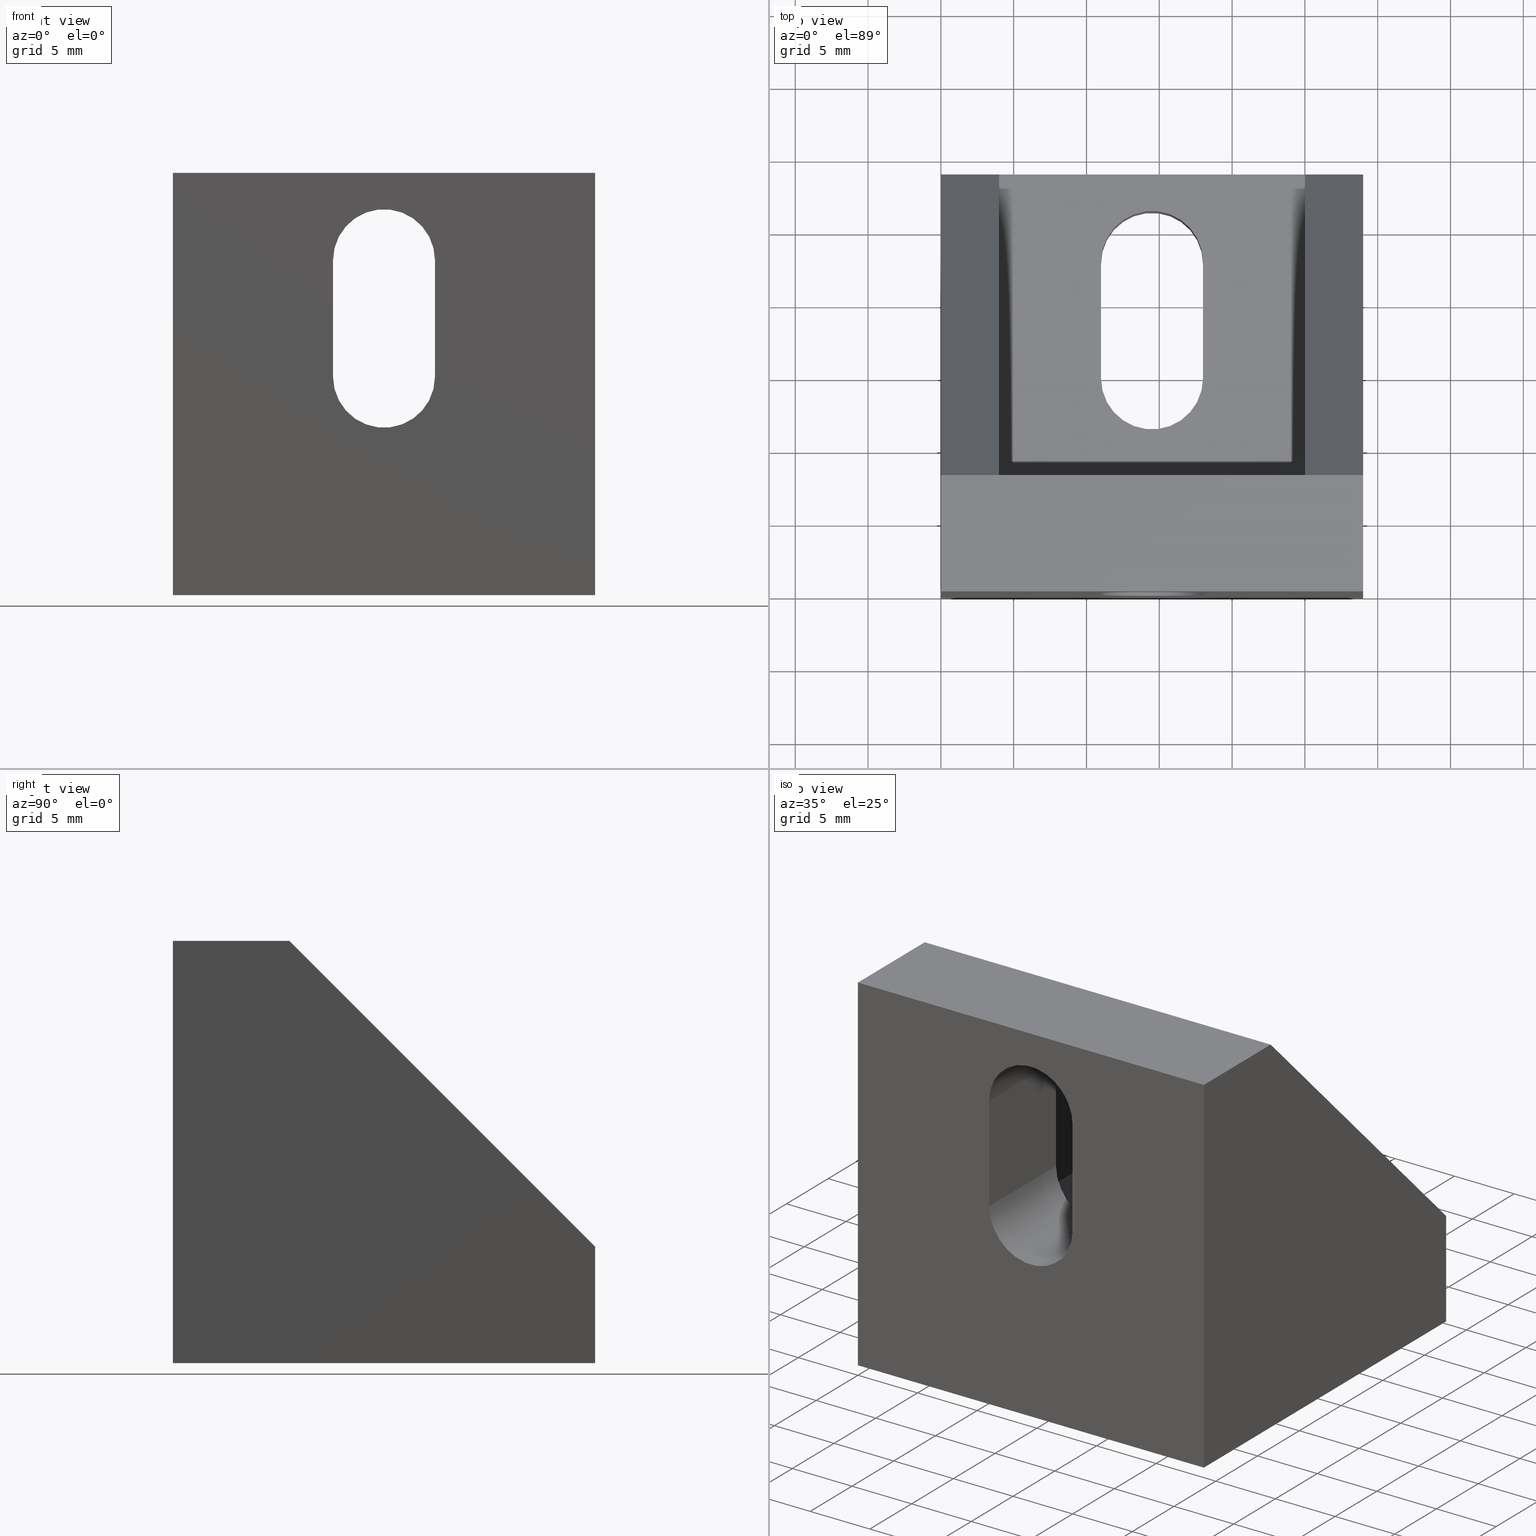
[diagram: canonical four-view strip — front | top / right | iso, engineering-drawing reading convention]
A machine part, canonical four-view strip (front | top / right | iso — engineering-drawing reading convention). The complete STEP part file that produces these views, byte-faithful:
ISO-10303-21;
HEADER;
/* Generated by software containing ST-Developer
 * from STEP Tools, Inc. (www.steptools.com) 
 */

FILE_DESCRIPTION(
/* description */ ('SQUADRETTA 29X29'),
/* implementation_level */ '2;1');

FILE_NAME(
/* name */ 
'Q:\\Catalogo\\2_Accessori Dierre\\Per Download Web e catalogo cartace
o\\CATALOGO ELEMENTI ASSEMBLAGGIO\\PAGINA 28\\DSQAL0000026.stp',
/* time_stamp */ '2018-06-25T10:16:25+02:00',
/* author */ ('fzagni'),
/* organization */ (''),
/* preprocessor_version */ 'ST-DEVELOPER v16.1',
/* originating_system */ 'Autodesk Inventor 2016',
/* authorisation */ '');

FILE_SCHEMA (('AUTOMOTIVE_DESIGN { 1 0 10303 214 3 1 1 }'));
ENDSEC;

DATA;
#10=MECHANICAL_DESIGN_GEOMETRIC_PRESENTATION_REPRESENTATION('',(#13),#613);
#11=SHAPE_REPRESENTATION_RELATIONSHIP('SRR','None',#622,#12);
#12=ADVANCED_BREP_SHAPE_REPRESENTATION('',(#14),#612);
#13=STYLED_ITEM('',(#631),#14);
#14=MANIFOLD_SOLID_BREP('Solido3',#377);
#15=FACE_BOUND('',#66,.T.);
#16=FACE_BOUND('',#68,.T.);
#17=FACE_BOUND('',#74,.T.);
#18=FACE_BOUND('',#76,.T.);
#19=PLANE('',#382);
#20=PLANE('',#386);
#21=PLANE('',#390);
#22=PLANE('',#394);
#23=PLANE('',#395);
#24=PLANE('',#396);
#25=PLANE('',#397);
#26=PLANE('',#398);
#27=PLANE('',#399);
#28=PLANE('',#400);
#29=PLANE('',#401);
#30=PLANE('',#402);
#31=PLANE('',#403);
#32=PLANE('',#404);
#33=PLANE('',#405);
#34=PLANE('',#406);
#35=FACE_OUTER_BOUND('',#55,.T.);
#36=FACE_OUTER_BOUND('',#56,.T.);
#37=FACE_OUTER_BOUND('',#57,.T.);
#38=FACE_OUTER_BOUND('',#58,.T.);
#39=FACE_OUTER_BOUND('',#59,.T.);
#40=FACE_OUTER_BOUND('',#60,.T.);
#41=FACE_OUTER_BOUND('',#61,.T.);
#42=FACE_OUTER_BOUND('',#62,.T.);
#43=FACE_OUTER_BOUND('',#63,.T.);
#44=FACE_OUTER_BOUND('',#64,.T.);
#45=FACE_OUTER_BOUND('',#65,.T.);
#46=FACE_OUTER_BOUND('',#67,.T.);
#47=FACE_OUTER_BOUND('',#69,.T.);
#48=FACE_OUTER_BOUND('',#70,.T.);
#49=FACE_OUTER_BOUND('',#71,.T.);
#50=FACE_OUTER_BOUND('',#72,.T.);
#51=FACE_OUTER_BOUND('',#73,.T.);
#52=FACE_OUTER_BOUND('',#75,.T.);
#53=FACE_OUTER_BOUND('',#77,.T.);
#54=FACE_OUTER_BOUND('',#78,.T.);
#55=EDGE_LOOP('',(#253,#254,#255,#256));
#56=EDGE_LOOP('',(#257,#258,#259,#260));
#57=EDGE_LOOP('',(#261,#262,#263,#264));
#58=EDGE_LOOP('',(#265,#266,#267,#268));
#59=EDGE_LOOP('',(#269,#270,#271,#272));
#60=EDGE_LOOP('',(#273,#274,#275,#276));
#61=EDGE_LOOP('',(#277,#278,#279,#280));
#62=EDGE_LOOP('',(#281,#282,#283,#284));
#63=EDGE_LOOP('',(#285,#286,#287));
#64=EDGE_LOOP('',(#288,#289,#290));
#65=EDGE_LOOP('',(#291,#292,#293,#294));
#66=EDGE_LOOP('',(#295,#296,#297,#298));
#67=EDGE_LOOP('',(#299,#300,#301,#302));
#68=EDGE_LOOP('',(#303,#304,#305,#306));
#69=EDGE_LOOP('',(#307,#308,#309,#310));
#70=EDGE_LOOP('',(#311,#312,#313,#314));
#71=EDGE_LOOP('',(#315,#316,#317,#318,#319,#320));
#72=EDGE_LOOP('',(#321,#322,#323,#324,#325,#326));
#73=EDGE_LOOP('',(#327,#328,#329,#330));
#74=EDGE_LOOP('',(#331,#332,#333,#334));
#75=EDGE_LOOP('',(#335,#336,#337,#338));
#76=EDGE_LOOP('',(#339,#340,#341,#342));
#77=EDGE_LOOP('',(#343,#344,#345,#346,#347));
#78=EDGE_LOOP('',(#348,#349,#350,#351,#352));
#79=LINE('',#513,#121);
#80=LINE('',#516,#122);
#81=LINE('',#519,#123);
#82=LINE('',#521,#124);
#83=LINE('',#522,#125);
#84=LINE('',#528,#126);
#85=LINE('',#530,#127);
#86=LINE('',#531,#128);
#87=LINE('',#537,#129);
#88=LINE('',#540,#130);
#89=LINE('',#543,#131);
#90=LINE('',#545,#132);
#91=LINE('',#546,#133);
#92=LINE('',#552,#134);
#93=LINE('',#554,#135);
#94=LINE('',#555,#136);
#95=LINE('',#559,#137);
#96=LINE('',#561,#138);
#97=LINE('',#562,#139);
#98=LINE('',#566,#140);
#99=LINE('',#568,#141);
#100=LINE('',#569,#142);
#101=LINE('',#571,#143);
#102=LINE('',#572,#144);
#103=LINE('',#574,#145);
#104=LINE('',#577,#146);
#105=LINE('',#579,#147);
#106=LINE('',#580,#148);
#107=LINE('',#583,#149);
#108=LINE('',#585,#150);
#109=LINE('',#586,#151);
#110=LINE('',#589,#152);
#111=LINE('',#591,#153);
#112=LINE('',#592,#154);
#113=LINE('',#595,#155);
#114=LINE('',#597,#156);
#115=LINE('',#598,#157);
#116=LINE('',#601,#158);
#117=LINE('',#603,#159);
#118=LINE('',#604,#160);
#119=LINE('',#606,#161);
#120=LINE('',#607,#162);
#121=VECTOR('',#413,8.);
#122=VECTOR('',#416,8.);
#123=VECTOR('',#419,8.);
#124=VECTOR('',#420,8.);
#125=VECTOR('',#421,8.);
#126=VECTOR('',#428,8.);
#127=VECTOR('',#431,8.);
#128=VECTOR('',#432,8.);
#129=VECTOR('',#437,8.);
#130=VECTOR('',#440,8.);
#131=VECTOR('',#443,7.99999999999999);
#132=VECTOR('',#444,7.99999999999999);
#133=VECTOR('',#445,8.);
#134=VECTOR('',#452,8.);
#135=VECTOR('',#455,8.);
#136=VECTOR('',#456,8.);
#137=VECTOR('',#459,29.698484809835);
#138=VECTOR('',#460,21.);
#139=VECTOR('',#461,21.);
#140=VECTOR('',#464,29.698484809835);
#141=VECTOR('',#465,21.);
#142=VECTOR('',#466,21.);
#143=VECTOR('',#469,21.);
#144=VECTOR('',#470,21.);
#145=VECTOR('',#473,21.);
#146=VECTOR('',#476,4.);
#147=VECTOR('',#477,29.698484809835);
#148=VECTOR('',#478,4.);
#149=VECTOR('',#481,4.);
#150=VECTOR('',#482,29.698484809835);
#151=VECTOR('',#483,4.);
#152=VECTOR('',#486,8.);
#153=VECTOR('',#487,29.);
#154=VECTOR('',#488,8.);
#155=VECTOR('',#491,8.);
#156=VECTOR('',#492,8.);
#157=VECTOR('',#493,29.);
#158=VECTOR('',#496,29.);
#159=VECTOR('',#497,29.);
#160=VECTOR('',#498,29.);
#161=VECTOR('',#501,29.);
#162=VECTOR('',#502,29.);
#163=CIRCLE('',#380,3.5);
#164=CIRCLE('',#381,3.5);
#165=CIRCLE('',#384,3.5);
#166=CIRCLE('',#385,3.5);
#167=CIRCLE('',#388,3.5);
#168=CIRCLE('',#389,3.5);
#169=CIRCLE('',#392,3.5);
#170=CIRCLE('',#393,3.5);
#171=VERTEX_POINT('',#509);
#172=VERTEX_POINT('',#510);
#173=VERTEX_POINT('',#512);
#174=VERTEX_POINT('',#514);
#175=VERTEX_POINT('',#518);
#176=VERTEX_POINT('',#520);
#177=VERTEX_POINT('',#524);
#178=VERTEX_POINT('',#526);
#179=VERTEX_POINT('',#533);
#180=VERTEX_POINT('',#534);
#181=VERTEX_POINT('',#536);
#182=VERTEX_POINT('',#538);
#183=VERTEX_POINT('',#542);
#184=VERTEX_POINT('',#544);
#185=VERTEX_POINT('',#548);
#186=VERTEX_POINT('',#550);
#187=VERTEX_POINT('',#557);
#188=VERTEX_POINT('',#558);
#189=VERTEX_POINT('',#560);
#190=VERTEX_POINT('',#564);
#191=VERTEX_POINT('',#565);
#192=VERTEX_POINT('',#567);
#193=VERTEX_POINT('',#576);
#194=VERTEX_POINT('',#578);
#195=VERTEX_POINT('',#582);
#196=VERTEX_POINT('',#584);
#197=VERTEX_POINT('',#588);
#198=VERTEX_POINT('',#590);
#199=VERTEX_POINT('',#594);
#200=VERTEX_POINT('',#596);
#201=VERTEX_POINT('',#600);
#202=VERTEX_POINT('',#602);
#203=EDGE_CURVE('',#171,#172,#163,.T.);
#204=EDGE_CURVE('',#173,#171,#79,.T.);
#205=EDGE_CURVE('',#174,#173,#164,.T.);
#206=EDGE_CURVE('',#174,#172,#80,.T.);
#207=EDGE_CURVE('',#172,#175,#81,.T.);
#208=EDGE_CURVE('',#176,#174,#82,.T.);
#209=EDGE_CURVE('',#176,#175,#83,.T.);
#210=EDGE_CURVE('',#175,#177,#165,.T.);
#211=EDGE_CURVE('',#178,#176,#166,.T.);
#212=EDGE_CURVE('',#178,#177,#84,.T.);
#213=EDGE_CURVE('',#177,#171,#85,.T.);
#214=EDGE_CURVE('',#173,#178,#86,.T.);
#215=EDGE_CURVE('',#179,#180,#167,.T.);
#216=EDGE_CURVE('',#181,#179,#87,.T.);
#217=EDGE_CURVE('',#182,#181,#168,.T.);
#218=EDGE_CURVE('',#182,#180,#88,.T.);
#219=EDGE_CURVE('',#180,#183,#89,.T.);
#220=EDGE_CURVE('',#184,#182,#90,.T.);
#221=EDGE_CURVE('',#184,#183,#91,.T.);
#222=EDGE_CURVE('',#183,#185,#169,.T.);
#223=EDGE_CURVE('',#186,#184,#170,.T.);
#224=EDGE_CURVE('',#186,#185,#92,.T.);
#225=EDGE_CURVE('',#185,#179,#93,.T.);
#226=EDGE_CURVE('',#181,#186,#94,.T.);
#227=EDGE_CURVE('',#187,#188,#95,.T.);
#228=EDGE_CURVE('',#187,#189,#96,.T.);
#229=EDGE_CURVE('',#188,#189,#97,.T.);
#230=EDGE_CURVE('',#190,#191,#98,.T.);
#231=EDGE_CURVE('',#190,#192,#99,.T.);
#232=EDGE_CURVE('',#192,#191,#100,.T.);
#233=EDGE_CURVE('',#190,#188,#101,.T.);
#234=EDGE_CURVE('',#189,#192,#102,.T.);
#235=EDGE_CURVE('',#191,#187,#103,.T.);
#236=EDGE_CURVE('',#193,#191,#104,.T.);
#237=EDGE_CURVE('',#194,#193,#105,.T.);
#238=EDGE_CURVE('',#194,#190,#106,.T.);
#239=EDGE_CURVE('',#188,#195,#107,.T.);
#240=EDGE_CURVE('',#196,#195,#108,.T.);
#241=EDGE_CURVE('',#187,#196,#109,.T.);
#242=EDGE_CURVE('',#197,#194,#110,.T.);
#243=EDGE_CURVE('',#197,#198,#111,.T.);
#244=EDGE_CURVE('',#195,#198,#112,.T.);
#245=EDGE_CURVE('',#193,#199,#113,.T.);
#246=EDGE_CURVE('',#200,#196,#114,.T.);
#247=EDGE_CURVE('',#199,#200,#115,.T.);
#248=EDGE_CURVE('',#199,#201,#116,.T.);
#249=EDGE_CURVE('',#202,#200,#117,.T.);
#250=EDGE_CURVE('',#201,#202,#118,.T.);
#251=EDGE_CURVE('',#201,#197,#119,.T.);
#252=EDGE_CURVE('',#198,#202,#120,.T.);
#253=ORIENTED_EDGE('',*,*,#203,.F.);
#254=ORIENTED_EDGE('',*,*,#204,.F.);
#255=ORIENTED_EDGE('',*,*,#205,.F.);
#256=ORIENTED_EDGE('',*,*,#206,.T.);
#257=ORIENTED_EDGE('',*,*,#207,.F.);
#258=ORIENTED_EDGE('',*,*,#206,.F.);
#259=ORIENTED_EDGE('',*,*,#208,.F.);
#260=ORIENTED_EDGE('',*,*,#209,.T.);
#261=ORIENTED_EDGE('',*,*,#210,.F.);
#262=ORIENTED_EDGE('',*,*,#209,.F.);
#263=ORIENTED_EDGE('',*,*,#211,.F.);
#264=ORIENTED_EDGE('',*,*,#212,.T.);
#265=ORIENTED_EDGE('',*,*,#213,.F.);
#266=ORIENTED_EDGE('',*,*,#212,.F.);
#267=ORIENTED_EDGE('',*,*,#214,.F.);
#268=ORIENTED_EDGE('',*,*,#204,.T.);
#269=ORIENTED_EDGE('',*,*,#215,.F.);
#270=ORIENTED_EDGE('',*,*,#216,.F.);
#271=ORIENTED_EDGE('',*,*,#217,.F.);
#272=ORIENTED_EDGE('',*,*,#218,.T.);
#273=ORIENTED_EDGE('',*,*,#219,.F.);
#274=ORIENTED_EDGE('',*,*,#218,.F.);
#275=ORIENTED_EDGE('',*,*,#220,.F.);
#276=ORIENTED_EDGE('',*,*,#221,.T.);
#277=ORIENTED_EDGE('',*,*,#222,.F.);
#278=ORIENTED_EDGE('',*,*,#221,.F.);
#279=ORIENTED_EDGE('',*,*,#223,.F.);
#280=ORIENTED_EDGE('',*,*,#224,.T.);
#281=ORIENTED_EDGE('',*,*,#225,.F.);
#282=ORIENTED_EDGE('',*,*,#224,.F.);
#283=ORIENTED_EDGE('',*,*,#226,.F.);
#284=ORIENTED_EDGE('',*,*,#216,.T.);
#285=ORIENTED_EDGE('',*,*,#227,.F.);
#286=ORIENTED_EDGE('',*,*,#228,.T.);
#287=ORIENTED_EDGE('',*,*,#229,.F.);
#288=ORIENTED_EDGE('',*,*,#230,.F.);
#289=ORIENTED_EDGE('',*,*,#231,.T.);
#290=ORIENTED_EDGE('',*,*,#232,.T.);
#291=ORIENTED_EDGE('',*,*,#233,.T.);
#292=ORIENTED_EDGE('',*,*,#229,.T.);
#293=ORIENTED_EDGE('',*,*,#234,.T.);
#294=ORIENTED_EDGE('',*,*,#231,.F.);
#295=ORIENTED_EDGE('',*,*,#222,.T.);
#296=ORIENTED_EDGE('',*,*,#225,.T.);
#297=ORIENTED_EDGE('',*,*,#215,.T.);
#298=ORIENTED_EDGE('',*,*,#219,.T.);
#299=ORIENTED_EDGE('',*,*,#235,.F.);
#300=ORIENTED_EDGE('',*,*,#232,.F.);
#301=ORIENTED_EDGE('',*,*,#234,.F.);
#302=ORIENTED_EDGE('',*,*,#228,.F.);
#303=ORIENTED_EDGE('',*,*,#210,.T.);
#304=ORIENTED_EDGE('',*,*,#213,.T.);
#305=ORIENTED_EDGE('',*,*,#203,.T.);
#306=ORIENTED_EDGE('',*,*,#207,.T.);
#307=ORIENTED_EDGE('',*,*,#230,.T.);
#308=ORIENTED_EDGE('',*,*,#236,.F.);
#309=ORIENTED_EDGE('',*,*,#237,.F.);
#310=ORIENTED_EDGE('',*,*,#238,.T.);
#311=ORIENTED_EDGE('',*,*,#227,.T.);
#312=ORIENTED_EDGE('',*,*,#239,.T.);
#313=ORIENTED_EDGE('',*,*,#240,.F.);
#314=ORIENTED_EDGE('',*,*,#241,.F.);
#315=ORIENTED_EDGE('',*,*,#242,.F.);
#316=ORIENTED_EDGE('',*,*,#243,.T.);
#317=ORIENTED_EDGE('',*,*,#244,.F.);
#318=ORIENTED_EDGE('',*,*,#239,.F.);
#319=ORIENTED_EDGE('',*,*,#233,.F.);
#320=ORIENTED_EDGE('',*,*,#238,.F.);
#321=ORIENTED_EDGE('',*,*,#245,.F.);
#322=ORIENTED_EDGE('',*,*,#236,.T.);
#323=ORIENTED_EDGE('',*,*,#235,.T.);
#324=ORIENTED_EDGE('',*,*,#241,.T.);
#325=ORIENTED_EDGE('',*,*,#246,.F.);
#326=ORIENTED_EDGE('',*,*,#247,.F.);
#327=ORIENTED_EDGE('',*,*,#248,.F.);
#328=ORIENTED_EDGE('',*,*,#247,.T.);
#329=ORIENTED_EDGE('',*,*,#249,.F.);
#330=ORIENTED_EDGE('',*,*,#250,.F.);
#331=ORIENTED_EDGE('',*,*,#211,.T.);
#332=ORIENTED_EDGE('',*,*,#208,.T.);
#333=ORIENTED_EDGE('',*,*,#205,.T.);
#334=ORIENTED_EDGE('',*,*,#214,.T.);
#335=ORIENTED_EDGE('',*,*,#251,.F.);
#336=ORIENTED_EDGE('',*,*,#250,.T.);
#337=ORIENTED_EDGE('',*,*,#252,.F.);
#338=ORIENTED_EDGE('',*,*,#243,.F.);
#339=ORIENTED_EDGE('',*,*,#223,.T.);
#340=ORIENTED_EDGE('',*,*,#220,.T.);
#341=ORIENTED_EDGE('',*,*,#217,.T.);
#342=ORIENTED_EDGE('',*,*,#226,.T.);
#343=ORIENTED_EDGE('',*,*,#251,.T.);
#344=ORIENTED_EDGE('',*,*,#242,.T.);
#345=ORIENTED_EDGE('',*,*,#237,.T.);
#346=ORIENTED_EDGE('',*,*,#245,.T.);
#347=ORIENTED_EDGE('',*,*,#248,.T.);
#348=ORIENTED_EDGE('',*,*,#252,.T.);
#349=ORIENTED_EDGE('',*,*,#249,.T.);
#350=ORIENTED_EDGE('',*,*,#246,.T.);
#351=ORIENTED_EDGE('',*,*,#240,.T.);
#352=ORIENTED_EDGE('',*,*,#244,.T.);
#353=CYLINDRICAL_SURFACE('',#379,3.5);
#354=CYLINDRICAL_SURFACE('',#383,3.5);
#355=CYLINDRICAL_SURFACE('',#387,3.5);
#356=CYLINDRICAL_SURFACE('',#391,3.5);
#357=ADVANCED_FACE('',(#35),#353,.F.);
#358=ADVANCED_FACE('',(#36),#19,.F.);
#359=ADVANCED_FACE('',(#37),#354,.F.);
#360=ADVANCED_FACE('',(#38),#20,.F.);
#361=ADVANCED_FACE('',(#39),#355,.F.);
#362=ADVANCED_FACE('',(#40),#21,.F.);
#363=ADVANCED_FACE('',(#41),#356,.F.);
#364=ADVANCED_FACE('',(#42),#22,.F.);
#365=ADVANCED_FACE('',(#43),#23,.F.);
#366=ADVANCED_FACE('',(#44),#24,.F.);
#367=ADVANCED_FACE('',(#45,#15),#25,.F.);
#368=ADVANCED_FACE('',(#46,#16),#26,.F.);
#369=ADVANCED_FACE('',(#47),#27,.T.);
#370=ADVANCED_FACE('',(#48),#28,.T.);
#371=ADVANCED_FACE('',(#49),#29,.T.);
#372=ADVANCED_FACE('',(#50),#30,.T.);
#373=ADVANCED_FACE('',(#51,#17),#31,.T.);
#374=ADVANCED_FACE('',(#52,#18),#32,.T.);
#375=ADVANCED_FACE('',(#53),#33,.F.);
#376=ADVANCED_FACE('',(#54),#34,.T.);
#377=CLOSED_SHELL('',(#357,#358,#359,#360,#361,#362,#363,#364,#365,#366,
#367,#368,#369,#370,#371,#372,#373,#374,#375,#376));
#378=AXIS2_PLACEMENT_3D('placement',#507,#407,#408);
#379=AXIS2_PLACEMENT_3D('',#508,#409,#410);
#380=AXIS2_PLACEMENT_3D('',#511,#411,#412);
#381=AXIS2_PLACEMENT_3D('',#515,#414,#415);
#382=AXIS2_PLACEMENT_3D('',#517,#417,#418);
#383=AXIS2_PLACEMENT_3D('',#523,#422,#423);
#384=AXIS2_PLACEMENT_3D('',#525,#424,#425);
#385=AXIS2_PLACEMENT_3D('',#527,#426,#427);
#386=AXIS2_PLACEMENT_3D('',#529,#429,#430);
#387=AXIS2_PLACEMENT_3D('',#532,#433,#434);
#388=AXIS2_PLACEMENT_3D('',#535,#435,#436);
#389=AXIS2_PLACEMENT_3D('',#539,#438,#439);
#390=AXIS2_PLACEMENT_3D('',#541,#441,#442);
#391=AXIS2_PLACEMENT_3D('',#547,#446,#447);
#392=AXIS2_PLACEMENT_3D('',#549,#448,#449);
#393=AXIS2_PLACEMENT_3D('',#551,#450,#451);
#394=AXIS2_PLACEMENT_3D('',#553,#453,#454);
#395=AXIS2_PLACEMENT_3D('',#556,#457,#458);
#396=AXIS2_PLACEMENT_3D('',#563,#462,#463);
#397=AXIS2_PLACEMENT_3D('',#570,#467,#468);
#398=AXIS2_PLACEMENT_3D('',#573,#471,#472);
#399=AXIS2_PLACEMENT_3D('',#575,#474,#475);
#400=AXIS2_PLACEMENT_3D('',#581,#479,#480);
#401=AXIS2_PLACEMENT_3D('',#587,#484,#485);
#402=AXIS2_PLACEMENT_3D('',#593,#489,#490);
#403=AXIS2_PLACEMENT_3D('',#599,#494,#495);
#404=AXIS2_PLACEMENT_3D('',#605,#499,#500);
#405=AXIS2_PLACEMENT_3D('',#608,#503,#504);
#406=AXIS2_PLACEMENT_3D('',#609,#505,#506);
#407=DIRECTION('axis',(0.,0.,1.));
#408=DIRECTION('refdir',(1.,0.,0.));
#409=DIRECTION('center_axis',(0.,-5.1044736764375E-17,1.));
#410=DIRECTION('ref_axis',(1.,6.34413156928661E-16,3.23834525952796E-32));
#411=DIRECTION('center_axis',(0.,0.,-1.));
#412=DIRECTION('ref_axis',(1.,6.34413156928661E-16,3.23834525952796E-32));
#413=DIRECTION('',(0.,-5.1044736764375E-17,1.));
#414=DIRECTION('center_axis',(0.,-6.12323399573676E-17,1.));
#415=DIRECTION('ref_axis',(1.,6.34413156928661E-16,3.23834525952796E-32));
#416=DIRECTION('',(0.,-5.1044736764375E-17,1.));
#417=DIRECTION('center_axis',(-1.,-5.55111512312578E-16,-2.83355210208697E-32));
#418=DIRECTION('ref_axis',(5.32907051820075E-16,-1.,-6.12323399573676E-17));
#419=DIRECTION('',(-5.55111512312578E-16,1.,0.));
#420=DIRECTION('',(5.55111512312578E-16,-1.,-6.12323399573676E-17));
#421=DIRECTION('',(0.,-5.1044736764375E-17,1.));
#422=DIRECTION('center_axis',(0.,-5.1044736764375E-17,1.));
#423=DIRECTION('ref_axis',(-1.,0.,0.));
#424=DIRECTION('center_axis',(0.,0.,-1.));
#425=DIRECTION('ref_axis',(-1.,0.,0.));
#426=DIRECTION('center_axis',(0.,-6.12323399573676E-17,1.));
#427=DIRECTION('ref_axis',(-1.,0.,0.));
#428=DIRECTION('',(0.,-5.1044736764375E-17,1.));
#429=DIRECTION('center_axis',(1.,0.,0.));
#430=DIRECTION('ref_axis',(0.,1.,6.12323399573676E-17));
#431=DIRECTION('',(0.,-1.,0.));
#432=DIRECTION('',(0.,1.,6.12323399573676E-17));
#433=DIRECTION('center_axis',(0.,1.,0.));
#434=DIRECTION('ref_axis',(-1.,0.,-1.26882631385732E-15));
#435=DIRECTION('center_axis',(1.05735526154777E-16,-1.,0.));
#436=DIRECTION('ref_axis',(-1.,0.,-1.26882631385732E-15));
#437=DIRECTION('',(0.,1.,0.));
#438=DIRECTION('center_axis',(0.,1.,0.));
#439=DIRECTION('ref_axis',(-1.,0.,-1.26882631385732E-15));
#440=DIRECTION('',(0.,1.,0.));
#441=DIRECTION('center_axis',(1.,0.,2.77555756156289E-16));
#442=DIRECTION('ref_axis',(3.5527136788005E-16,0.,-1.));
#443=DIRECTION('',(-2.77555756156289E-16,-2.93475039144722E-32,1.));
#444=DIRECTION('',(2.77555756156289E-16,0.,-1.));
#445=DIRECTION('',(0.,1.,0.));
#446=DIRECTION('center_axis',(0.,1.,0.));
#447=DIRECTION('ref_axis',(1.,0.,0.));
#448=DIRECTION('center_axis',(1.05735526154777E-16,-1.,0.));
#449=DIRECTION('ref_axis',(1.,0.,0.));
#450=DIRECTION('center_axis',(0.,1.,0.));
#451=DIRECTION('ref_axis',(1.,0.,0.));
#452=DIRECTION('',(0.,1.,0.));
#453=DIRECTION('center_axis',(-1.,0.,-2.77555756156289E-16));
#454=DIRECTION('ref_axis',(-3.5527136788005E-16,0.,1.));
#455=DIRECTION('',(2.77555756156289E-16,2.93475039144721E-32,-1.));
#456=DIRECTION('',(-2.77555756156289E-16,0.,1.));
#457=DIRECTION('center_axis',(1.,0.,0.));
#458=DIRECTION('ref_axis',(0.,-1.,0.));
#459=DIRECTION('',(0.,-0.707106781186548,0.707106781186548));
#460=DIRECTION('',(0.,-1.,0.));
#461=DIRECTION('',(0.,0.,-1.));
#462=DIRECTION('center_axis',(-1.,-1.05735526154777E-16,0.));
#463=DIRECTION('ref_axis',(-8.88178419700125E-17,1.,0.));
#464=DIRECTION('',(-7.47663075563702E-17,0.707106781186547,-0.707106781186547));
#465=DIRECTION('',(0.,0.,-1.));
#466=DIRECTION('',(-1.05735526154777E-16,1.,0.));
#467=DIRECTION('center_axis',(1.05735526154777E-16,-1.,0.));
#468=DIRECTION('ref_axis',(-1.,-1.77635683940025E-16,0.));
#469=DIRECTION('',(1.,0.,0.));
#470=DIRECTION('',(-1.,-1.05735526154777E-16,0.));
#471=DIRECTION('center_axis',(0.,0.,-1.));
#472=DIRECTION('ref_axis',(-1.,0.,0.));
#473=DIRECTION('',(1.,0.,0.));
#474=DIRECTION('center_axis',(0.,0.707106781186547,0.707106781186548));
#475=DIRECTION('ref_axis',(0.,-0.707106781186548,0.707106781186548));
#476=DIRECTION('',(1.,0.,0.));
#477=DIRECTION('',(0.,0.707106781186547,-0.707106781186547));
#478=DIRECTION('',(1.,0.,0.));
#479=DIRECTION('center_axis',(0.,0.707106781186547,0.707106781186548));
#480=DIRECTION('ref_axis',(0.,-0.707106781186548,0.707106781186548));
#481=DIRECTION('',(1.,0.,0.));
#482=DIRECTION('',(0.,-0.707106781186547,0.707106781186547));
#483=DIRECTION('',(1.,0.,0.));
#484=DIRECTION('center_axis',(0.,0.,1.));
#485=DIRECTION('ref_axis',(0.,-1.,0.));
#486=DIRECTION('',(0.,1.,0.));
#487=DIRECTION('',(1.,0.,0.));
#488=DIRECTION('',(0.,-1.,0.));
#489=DIRECTION('center_axis',(0.,1.,0.));
#490=DIRECTION('ref_axis',(0.,0.,1.));
#491=DIRECTION('',(0.,0.,-1.));
#492=DIRECTION('',(0.,0.,1.));
#493=DIRECTION('',(1.,0.,0.));
#494=DIRECTION('center_axis',(0.,6.12323399573676E-17,-1.));
#495=DIRECTION('ref_axis',(0.,1.,6.12323399573676E-17));
#496=DIRECTION('',(0.,-1.,-6.12323399573676E-17));
#497=DIRECTION('',(0.,1.,6.12323399573676E-17));
#498=DIRECTION('',(1.,0.,0.));
#499=DIRECTION('center_axis',(0.,-1.,0.));
#500=DIRECTION('ref_axis',(0.,0.,-1.));
#501=DIRECTION('',(0.,0.,1.));
#502=DIRECTION('',(0.,0.,-1.));
#503=DIRECTION('center_axis',(1.,0.,0.));
#504=DIRECTION('ref_axis',(0.,0.,-1.));
#505=DIRECTION('center_axis',(1.,0.,0.));
#506=DIRECTION('ref_axis',(0.,0.,-1.));
#507=CARTESIAN_POINT('',(0.,0.,0.));
#508=CARTESIAN_POINT('Origin',(14.5,15.,9.18485099360515E-16));
#509=CARTESIAN_POINT('',(18.,15.,8.));
#510=CARTESIAN_POINT('',(11.,15.,8.));
#511=CARTESIAN_POINT('Origin',(14.5,15.,8.));
#512=CARTESIAN_POINT('',(18.,15.,9.18485099360515E-16));
#513=CARTESIAN_POINT('',(18.,15.,9.18485099360515E-16));
#514=CARTESIAN_POINT('',(11.,15.,9.18485099360515E-16));
#515=CARTESIAN_POINT('Origin',(14.5,15.,7.65671051465625E-16));
#516=CARTESIAN_POINT('',(11.,15.,9.18485099360515E-16));
#517=CARTESIAN_POINT('Origin',(11.,23.,1.40834381901946E-15));
#518=CARTESIAN_POINT('',(11.,23.,8.));
#519=CARTESIAN_POINT('',(11.,20.75,8.));
#520=CARTESIAN_POINT('',(11.,23.,1.40834381901946E-15));
#521=CARTESIAN_POINT('',(11.,11.5,7.04171909509728E-16));
#522=CARTESIAN_POINT('',(11.,23.,1.40834381901946E-15));
#523=CARTESIAN_POINT('Origin',(14.5,23.,1.40834381901946E-15));
#524=CARTESIAN_POINT('',(18.,23.,8.));
#525=CARTESIAN_POINT('Origin',(14.5,23.,8.));
#526=CARTESIAN_POINT('',(18.,23.,1.40834381901946E-15));
#527=CARTESIAN_POINT('Origin',(14.5,23.,1.17402894558063E-15));
#528=CARTESIAN_POINT('',(18.,23.,1.40834381901946E-15));
#529=CARTESIAN_POINT('Origin',(18.,15.,9.18485099360515E-16));
#530=CARTESIAN_POINT('',(18.,16.75,8.));
#531=CARTESIAN_POINT('',(18.,7.5,4.59242549680258E-16));
#532=CARTESIAN_POINT('Origin',(14.5,0.,15.));
#533=CARTESIAN_POINT('',(11.,8.,15.));
#534=CARTESIAN_POINT('',(18.,8.,15.));
#535=CARTESIAN_POINT('Origin',(14.5,8.,15.));
#536=CARTESIAN_POINT('',(11.,0.,15.));
#537=CARTESIAN_POINT('',(11.,0.,15.));
#538=CARTESIAN_POINT('',(18.,0.,15.));
#539=CARTESIAN_POINT('Origin',(14.5,0.,15.));
#540=CARTESIAN_POINT('',(18.,0.,15.));
#541=CARTESIAN_POINT('Origin',(18.,0.,23.));
#542=CARTESIAN_POINT('',(18.,8.,23.));
#543=CARTESIAN_POINT('',(18.,8.,26.));
#544=CARTESIAN_POINT('',(18.,0.,23.));
#545=CARTESIAN_POINT('',(18.,0.,26.));
#546=CARTESIAN_POINT('',(18.,0.,23.));
#547=CARTESIAN_POINT('Origin',(14.5,0.,23.));
#548=CARTESIAN_POINT('',(11.,8.,23.));
#549=CARTESIAN_POINT('Origin',(14.5,8.,23.));
#550=CARTESIAN_POINT('',(11.,0.,23.));
#551=CARTESIAN_POINT('Origin',(14.5,0.,23.));
#552=CARTESIAN_POINT('',(11.,0.,23.));
#553=CARTESIAN_POINT('Origin',(11.,0.,15.));
#554=CARTESIAN_POINT('',(11.,8.,22.));
#555=CARTESIAN_POINT('',(11.,0.,22.));
#556=CARTESIAN_POINT('Origin',(25.,29.,29.));
#557=CARTESIAN_POINT('',(25.,29.,8.));
#558=CARTESIAN_POINT('',(25.,8.,29.));
#559=CARTESIAN_POINT('',(25.,23.75,13.25));
#560=CARTESIAN_POINT('',(25.,8.,8.));
#561=CARTESIAN_POINT('',(25.,29.,8.));
#562=CARTESIAN_POINT('',(25.,8.,29.));
#563=CARTESIAN_POINT('Origin',(4.,8.,29.));
#564=CARTESIAN_POINT('',(4.,8.,29.));
#565=CARTESIAN_POINT('',(4.,29.,8.));
#566=CARTESIAN_POINT('',(4.,18.5,18.5));
#567=CARTESIAN_POINT('',(4.,8.,8.));
#568=CARTESIAN_POINT('',(4.,8.,29.));
#569=CARTESIAN_POINT('',(4.,8.,8.));
#570=CARTESIAN_POINT('Origin',(25.,8.,29.));
#571=CARTESIAN_POINT('',(0.,8.,29.));
#572=CARTESIAN_POINT('',(25.,8.,8.));
#573=CARTESIAN_POINT('Origin',(14.5,18.5,8.));
#574=CARTESIAN_POINT('',(0.,29.,8.));
#575=CARTESIAN_POINT('Origin',(0.,29.,8.));
#576=CARTESIAN_POINT('',(0.,29.,8.));
#577=CARTESIAN_POINT('',(0.,29.,8.));
#578=CARTESIAN_POINT('',(0.,8.,29.));
#579=CARTESIAN_POINT('',(0.,8.,29.));
#580=CARTESIAN_POINT('',(0.,8.,29.));
#581=CARTESIAN_POINT('Origin',(0.,29.,8.));
#582=CARTESIAN_POINT('',(29.,8.,29.));
#583=CARTESIAN_POINT('',(0.,8.,29.));
#584=CARTESIAN_POINT('',(29.,29.,8.));
#585=CARTESIAN_POINT('',(29.,8.,29.));
#586=CARTESIAN_POINT('',(0.,29.,8.));
#587=CARTESIAN_POINT('Origin',(0.,8.,29.));
#588=CARTESIAN_POINT('',(0.,0.,29.));
#589=CARTESIAN_POINT('',(0.,0.,29.));
#590=CARTESIAN_POINT('',(29.,0.,29.));
#591=CARTESIAN_POINT('',(0.,0.,29.));
#592=CARTESIAN_POINT('',(29.,0.,29.));
#593=CARTESIAN_POINT('Origin',(0.,29.,2.22044604925031E-15));
#594=CARTESIAN_POINT('',(0.,29.,1.77573785876366E-15));
#595=CARTESIAN_POINT('',(0.,29.,8.));
#596=CARTESIAN_POINT('',(29.,29.,1.77573785876366E-15));
#597=CARTESIAN_POINT('',(29.,29.,8.));
#598=CARTESIAN_POINT('',(0.,29.,1.77573785876366E-15));
#599=CARTESIAN_POINT('Origin',(0.,0.,2.46519032881566E-31));
#600=CARTESIAN_POINT('',(0.,0.,0.));
#601=CARTESIAN_POINT('',(0.,29.,1.77573785876366E-15));
#602=CARTESIAN_POINT('',(29.,0.,0.));
#603=CARTESIAN_POINT('',(29.,29.,1.77573785876366E-15));
#604=CARTESIAN_POINT('',(0.,0.,0.));
#605=CARTESIAN_POINT('Origin',(0.,0.,29.));
#606=CARTESIAN_POINT('',(0.,0.,0.));
#607=CARTESIAN_POINT('',(29.,0.,0.));
#608=CARTESIAN_POINT('Origin',(0.,11.8991320967201,11.8991320967201));
#609=CARTESIAN_POINT('Origin',(29.,11.8991320967201,11.8991320967201));
#610=UNCERTAINTY_MEASURE_WITH_UNIT(LENGTH_MEASURE(0.01),#614,
'DISTANCE_ACCURACY_VALUE',
'Maximum model space distance between geometric entities at asserted c
onnectivities');
#611=UNCERTAINTY_MEASURE_WITH_UNIT(LENGTH_MEASURE(1.E-6),#614,
'DISTANCE_ACCURACY_VALUE',
'Maximum model space distance between geometric entities at asserted c
onnectivities');
#612=(
GEOMETRIC_REPRESENTATION_CONTEXT(3)
GLOBAL_UNCERTAINTY_ASSIGNED_CONTEXT((#610))
GLOBAL_UNIT_ASSIGNED_CONTEXT((#614,#617,#615))
REPRESENTATION_CONTEXT('','3D')
);
#613=(
GEOMETRIC_REPRESENTATION_CONTEXT(3)
GLOBAL_UNCERTAINTY_ASSIGNED_CONTEXT((#611))
GLOBAL_UNIT_ASSIGNED_CONTEXT((#614,#617,#615))
REPRESENTATION_CONTEXT('','3D')
);
#614=(
LENGTH_UNIT()
NAMED_UNIT(*)
SI_UNIT(.MILLI.,.METRE.)
);
#615=(
NAMED_UNIT(*)
SI_UNIT($,.STERADIAN.)
SOLID_ANGLE_UNIT()
);
#616=DIMENSIONAL_EXPONENTS(0.,0.,0.,0.,0.,0.,0.);
#617=(
CONVERSION_BASED_UNIT('degree',#619)
NAMED_UNIT(#616)
PLANE_ANGLE_UNIT()
);
#618=(
NAMED_UNIT(*)
PLANE_ANGLE_UNIT()
SI_UNIT($,.RADIAN.)
);
#619=PLANE_ANGLE_MEASURE_WITH_UNIT(PLANE_ANGLE_MEASURE(0.01745329252),#618);
#620=SHAPE_DEFINITION_REPRESENTATION(#621,#622);
#621=PRODUCT_DEFINITION_SHAPE('',$,#624);
#622=SHAPE_REPRESENTATION('',(#378),#612);
#623=PRODUCT_DEFINITION_CONTEXT('part definition',#628,'design');
#624=PRODUCT_DEFINITION('30.052.00','30.052.00',#625,#623);
#625=PRODUCT_DEFINITION_FORMATION('','A',#630);
#626=PRODUCT_RELATED_PRODUCT_CATEGORY('30.052.00','30.052.00',(#630));
#627=APPLICATION_PROTOCOL_DEFINITION('international standard',
'automotive_design',2009,#628);
#628=APPLICATION_CONTEXT(
'Core Data for Automotive Mechanical Design Process');
#629=PRODUCT_CONTEXT('part definition',#628,'mechanical');
#630=PRODUCT('30.052.00','30.052.00',$,(#629));
#631=PRESENTATION_STYLE_ASSIGNMENT((#632));
#632=SURFACE_STYLE_USAGE(.BOTH.,#633);
#633=SURFACE_SIDE_STYLE('',(#634));
#634=SURFACE_STYLE_FILL_AREA(#635);
#635=FILL_AREA_STYLE('',(#636));
#636=FILL_AREA_STYLE_COLOUR('',#637);
#637=COLOUR_RGB('',0.956862745098039,0.956862745098039,0.956862745098039);
ENDSEC;
END-ISO-10303-21;
